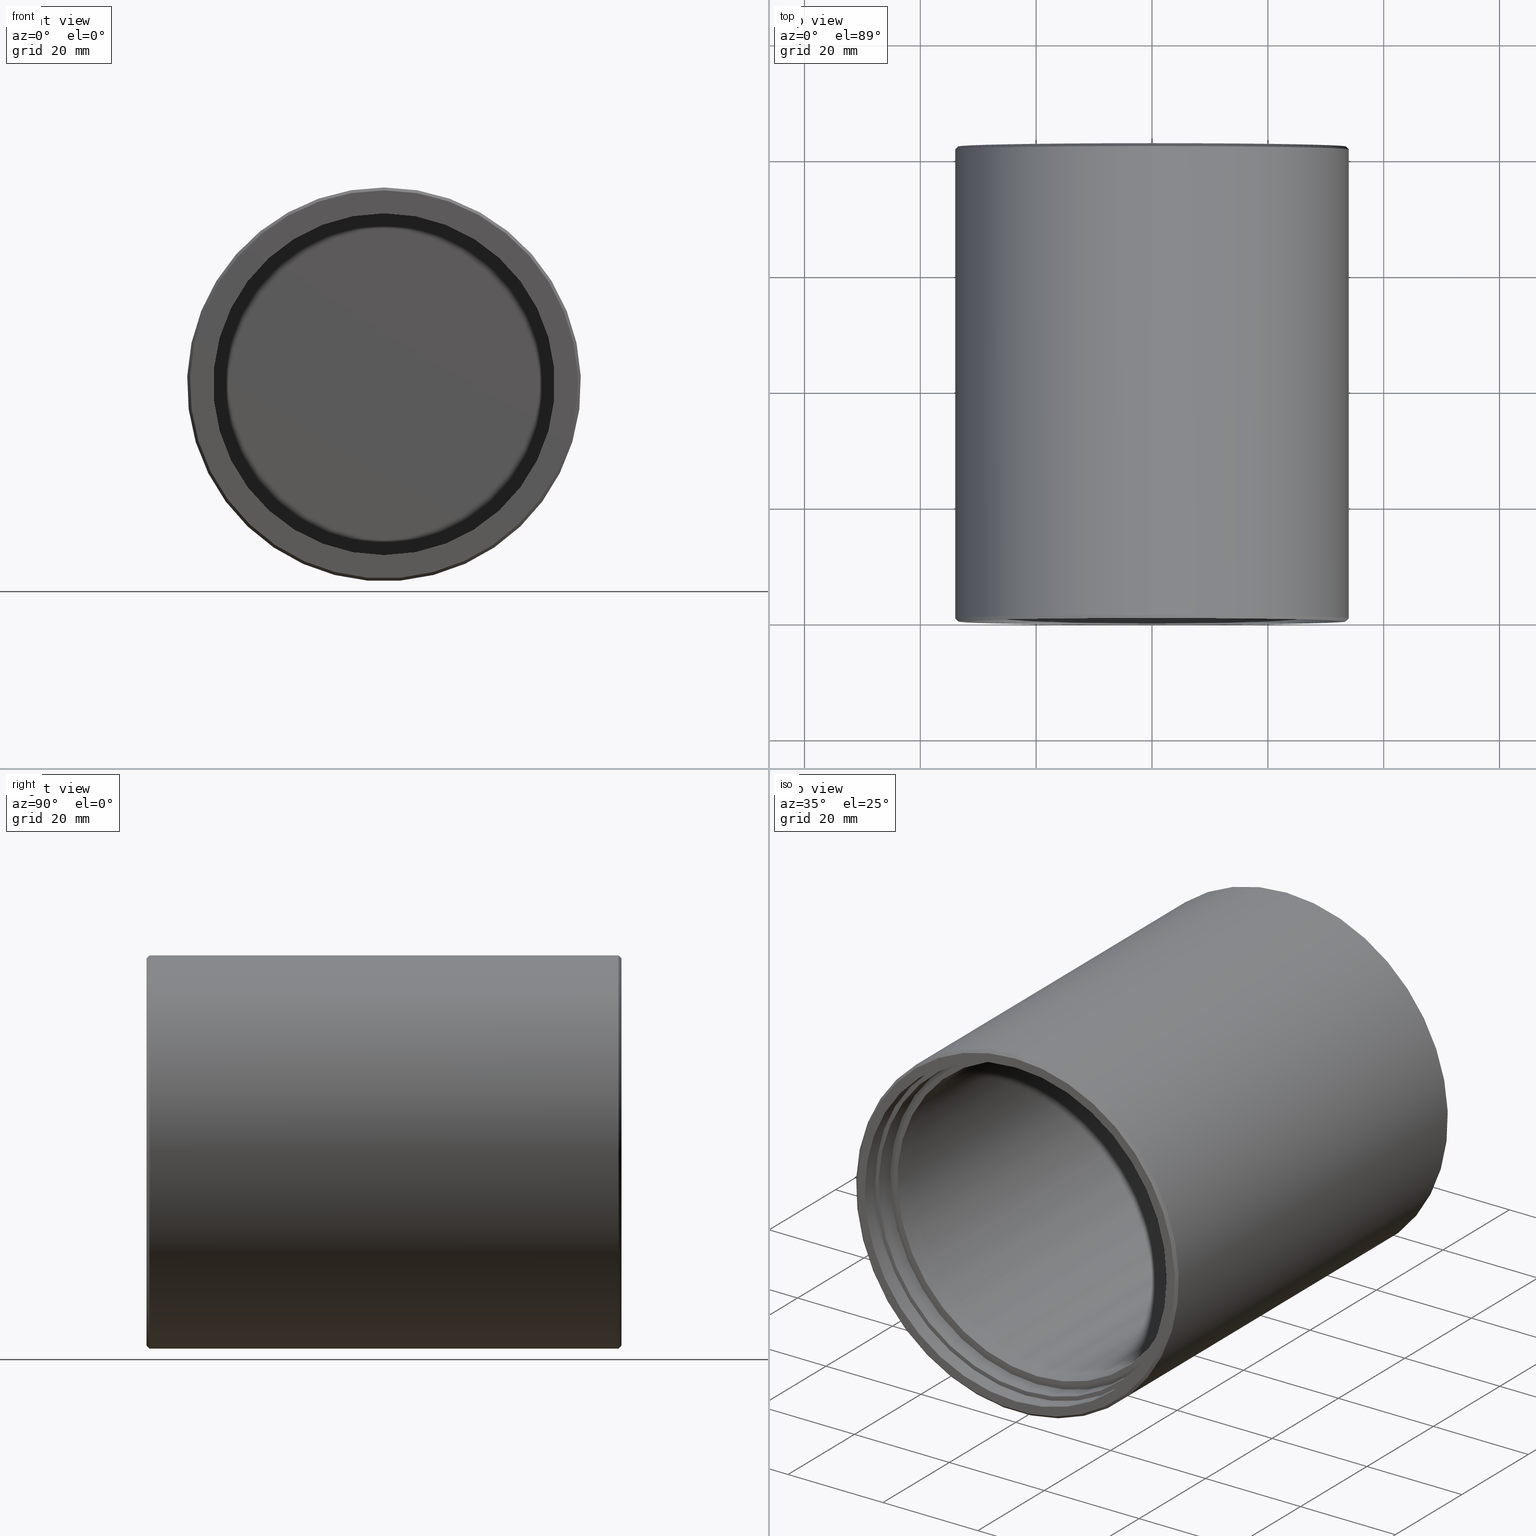
[diagram: canonical four-view strip — front | top / right | iso, engineering-drawing reading convention]
A machine part, canonical four-view strip (front | top / right | iso — engineering-drawing reading convention). The complete STEP part file that produces these views, byte-faithful:
ISO-10303-21;
HEADER;
FILE_DESCRIPTION (( 'STEP AP203' ),
    '1' );
FILE_NAME ('670040.STEP',
    '2025-05-23T04:17:09',
    ( 'Windows User' ),
    ( 'P R C' ),
    'SwSTEP 2.0',
    'SolidWorks 2020',
    '' );
FILE_SCHEMA (( 'CONFIG_CONTROL_DESIGN' ));
ENDSEC;

DATA;
#1 = DIRECTION ( 'NONE',  ( 0.000000000000000000, 0.000000000000000000, -1.000000000000000000 ) ) ;
#2 = AXIS2_PLACEMENT_3D ( 'NONE', #315, #267, #17 ) ;
#3 = ORIENTED_EDGE ( 'NONE', *, *, #191, .F. ) ;
#4 = ADVANCED_FACE ( 'NONE', ( #233, #262 ), #69, .T. ) ;
#5 = PERSON_AND_ORGANIZATION ( #6, #324 ) ;
#6 = PERSON ( 'δָ��', 'δָ��', 'δָ��', ('δָ��'), ('δָ��'), ('δָ��') ) ;
#7 = EDGE_LOOP ( 'NONE', ( #31 ) ) ;
#8 = CARTESIAN_POINT ( 'NONE',  ( 0.000000000000000000, 0.000000000000000000, 0.000000000000000000 ) ) ;
#9 = DATE_AND_TIME ( #311, #217 ) ;
#10 = ORIENTED_EDGE ( 'NONE', *, *, #321, .T. ) ;
#11 = APPLICATION_CONTEXT ( 'configuration controlled 3d designs of mechanical parts and assemblies' ) ;
#12 = PERSON_AND_ORGANIZATION ( #6, #324 ) ;
#13 = ORIENTED_EDGE ( 'NONE', *, *, #354, .T. ) ;
#14 = DIRECTION ( 'NONE',  ( 0.000000000000000000, 1.000000000000000000, 0.000000000000000000 ) ) ;
#15 = AXIS2_PLACEMENT_3D ( 'NONE', #296, #185, #43 ) ;
#16 = PLANE ( 'NONE',  #198 ) ;
#17 = DIRECTION ( 'NONE',  ( 0.000000000000000000, 0.000000000000000000, 1.000000000000000000 ) ) ;
#18 = FACE_OUTER_BOUND ( 'NONE', #178, .T. ) ;
#19 = AXIS2_PLACEMENT_3D ( 'NONE', #238, #22, #155 ) ;
#20 = APPROVAL_PERSON_ORGANIZATION ( #199, #136, #308 ) ;
#21 = DIRECTION ( 'NONE',  ( -0.000000000000000000, 1.000000000000000000, -0.000000000000000000 ) ) ;
#22 = DIRECTION ( 'NONE',  ( -0.000000000000000000, -1.000000000000000000, -0.000000000000000000 ) ) ;
#23 = DIRECTION ( 'NONE',  ( 0.000000000000000000, 0.000000000000000000, -1.000000000000000000 ) ) ;
#24 = CC_DESIGN_DATE_AND_TIME_ASSIGNMENT ( #288, #205, ( #299 ) ) ;
#25 = CARTESIAN_POINT ( 'NONE',  ( 0.000000000000000000, 6.479999999999999538, 0.000000000000000000 ) ) ;
#26 = AXIS2_PLACEMENT_3D ( 'NONE', #33, #65, #93 ) ;
#27 = CARTESIAN_POINT ( 'NONE',  ( 0.000000000000000000, 3.000000000000000000, -31.00000000000000000 ) ) ;
#28 = CARTESIAN_POINT ( 'NONE',  ( 0.000000000000000000, 6.479999999999999538, -29.50000000000000355 ) ) ;
#29 = APPROVAL_ROLE ( '' ) ;
#30 = CIRCLE ( 'NONE', #182, 33.99999999999999289 ) ;
#31 = ORIENTED_EDGE ( 'NONE', *, *, #334, .F. ) ;
#32 = FACE_OUTER_BOUND ( 'NONE', #159, .T. ) ;
#33 = CARTESIAN_POINT ( 'NONE',  ( 0.000000000000000000, 81.29881402696902626, 0.000000000000000000 ) ) ;
#34 = COORDINATED_UNIVERSAL_TIME_OFFSET ( 8, 0, .AHEAD. ) ;
#35 = CARTESIAN_POINT ( 'NONE',  ( 0.000000000000000000, 0.5000000000000143219, 0.000000000000000000 ) ) ;
#36 = DATE_AND_TIME ( #64, #249 ) ;
#37 = EDGE_LOOP ( 'NONE', ( #227 ) ) ;
#38 = FACE_OUTER_BOUND ( 'NONE', #139, .T. ) ;
#39 = EDGE_CURVE ( 'NONE', #78, #78, #186, .T. ) ;
#40 = FACE_OUTER_BOUND ( 'NONE', #166, .T. ) ;
#41 = LOCAL_TIME ( 12, 17, 9.000000000000000000, #34 ) ;
#42 = CC_DESIGN_APPROVAL ( #136, ( #207 ) ) ;
#43 = DIRECTION ( 'NONE',  ( 0.000000000000000000, -0.000000000000000000, -1.000000000000000000 ) ) ;
#44 = FACE_OUTER_BOUND ( 'NONE', #147, .T. ) ;
#45 = ADVANCED_FACE ( 'NONE', ( #38, #148 ), #53, .F. ) ;
#46 = FACE_OUTER_BOUND ( 'NONE', #306, .T. ) ;
#47 = AXIS2_PLACEMENT_3D ( 'NONE', #105, #323, #23 ) ;
#48 = DIRECTION ( 'NONE',  ( 0.000000000000000000, 0.000000000000000000, -1.000000000000000000 ) ) ;
#49 = CARTESIAN_POINT ( 'NONE',  ( 0.000000000000000000, 0.5000000000000143219, 33.99999999999999289 ) ) ;
#50 = ORIENTED_EDGE ( 'NONE', *, *, #111, .F. ) ;
#51 = ORIENTED_EDGE ( 'NONE', *, *, #165, .T. ) ;
#52 = VERTEX_POINT ( 'NONE', #81 ) ;
#53 = CONICAL_SURFACE ( 'NONE', #330, 29.86885863975199129, 1.286627573503845712 ) ;
#54 = DIRECTION ( 'NONE',  ( -0.000000000000000000, -1.000000000000000000, -0.000000000000000000 ) ) ;
#55 = EDGE_LOOP ( 'NONE', ( #50 ) ) ;
#56 = MANIFOLD_SOLID_BREP ( '͹̨-����2', #140 ) ;
#57 = PERSON_AND_ORGANIZATION ( #6, #324 ) ;
#58 = AXIS2_PLACEMENT_3D ( 'NONE', #351, #153, #266 ) ;
#59 = EDGE_LOOP ( 'NONE', ( #312 ) ) ;
#60 = SHAPE_DEFINITION_REPRESENTATION ( #132, #230 ) ;
#61 = DIRECTION ( 'NONE',  ( -0.000000000000000000, 1.000000000000000000, -0.000000000000000000 ) ) ;
#62 = COORDINATED_UNIVERSAL_TIME_OFFSET ( 8, 0, .AHEAD. ) ;
#63 = EDGE_LOOP ( 'NONE', ( #170 ) ) ;
#64 = CALENDAR_DATE ( 2025, 23, 5 ) ;
#65 = DIRECTION ( 'NONE',  ( 0.000000000000000000, -1.000000000000000000, 0.000000000000000000 ) ) ;
#66 = LOCAL_TIME ( 12, 17, 9.000000000000000000, #284 ) ;
#67 = APPROVAL_STATUS ( 'not_yet_approved' ) ;
#68 = EDGE_CURVE ( 'NONE', #276, #276, #30, .T. ) ;
#69 = PLANE ( 'NONE',  #345 ) ;
#70 = CARTESIAN_POINT ( 'NONE',  ( 0.000000000000000000, 81.50000000000000000, 0.000000000000000000 ) ) ;
#71 = DIRECTION ( 'NONE',  ( 0.000000000000000000, -0.000000000000000000, 1.000000000000000000 ) ) ;
#72 = AXIS2_PLACEMENT_3D ( 'NONE', #8, #231, #202 ) ;
#73 = CARTESIAN_POINT ( 'NONE',  ( 0.000000000000000000, 3.000000000000000000, 0.000000000000000000 ) ) ;
#74 = ADVANCED_FACE ( 'NONE', ( #85, #340 ), #115, .F. ) ;
#75 = DIRECTION ( 'NONE',  ( 0.000000000000000000, 1.000000000000000000, 0.000000000000000000 ) ) ;
#76 = DIRECTION ( 'NONE',  ( 0.000000000000000000, -1.000000000000000000, 0.000000000000000000 ) ) ;
#77 = CC_DESIGN_DATE_AND_TIME_ASSIGNMENT ( #86, #234, ( #207 ) ) ;
#78 = VERTEX_POINT ( 'NONE', #188 ) ;
#79 = VERTEX_POINT ( 'NONE', #27 ) ;
#80 = ORIENTED_EDGE ( 'NONE', *, *, #154, .T. ) ;
#81 = CARTESIAN_POINT ( 'NONE',  ( 0.000000000000000000, 0.000000000000000000, -31.80000000000000071 ) ) ;
#82 = EDGE_LOOP ( 'NONE', ( #88 ) ) ;
#83 =( GEOMETRIC_REPRESENTATION_CONTEXT ( 3 ) GLOBAL_UNCERTAINTY_ASSIGNED_CONTEXT ( ( #250 ) ) GLOBAL_UNIT_ASSIGNED_CONTEXT ( ( #160, #246, #278 ) ) REPRESENTATION_CONTEXT ( 'NONE', 'WORKASPACE' ) );
#84 = CARTESIAN_POINT ( 'NONE',  ( 0.000000000000000000, 81.00000000000000000, 30.00000000000000000 ) ) ;
#85 = FACE_OUTER_BOUND ( 'NONE', #55, .T. ) ;
#86 = DATE_AND_TIME ( #201, #66 ) ;
#87 = AXIS2_PLACEMENT_3D ( 'NONE', #25, #352, #1 ) ;
#88 = ORIENTED_EDGE ( 'NONE', *, *, #154, .F. ) ;
#89 = CARTESIAN_POINT ( 'NONE',  ( 0.000000000000000000, 84.00000000000000000, 0.000000000000000000 ) ) ;
#90 = PERSON_AND_ORGANIZATION_ROLE ( 'creator' ) ;
#91 = ORIENTED_EDGE ( 'NONE', *, *, #165, .F. ) ;
#92 = APPROVAL ( #224, 'δָ��' ) ;
#93 = DIRECTION ( 'NONE',  ( 0.000000000000000000, 0.000000000000000000, 1.000000000000000000 ) ) ;
#94 = AXIS2_PLACEMENT_3D ( 'NONE', #73, #212, #240 ) ;
#95 = DIRECTION ( 'NONE',  ( 0.000000000000000000, -1.000000000000000000, 0.000000000000000000 ) ) ;
#96 = DIRECTION ( 'NONE',  ( 0.000000000000000000, 0.000000000000000000, 1.000000000000000000 ) ) ;
#97 = DIRECTION ( 'NONE',  ( 0.000000000000000000, -1.000000000000000000, 0.000000000000000000 ) ) ;
#98 = AXIS2_PLACEMENT_3D ( 'NONE', #179, #95, #48 ) ;
#99 = FACE_BOUND ( 'NONE', #112, .T. ) ;
#100 = DIRECTION ( 'NONE',  ( 0.000000000000000000, -1.000000000000000000, 0.000000000000000000 ) ) ;
#101 = ADVANCED_FACE ( 'NONE', ( #285, #32 ), #142, .F. ) ;
#102 = CARTESIAN_POINT ( 'NONE',  ( 0.000000000000000000, 78.00000000000000000, 0.000000000000000000 ) ) ;
#103 = AXIS2_PLACEMENT_3D ( 'NONE', #70, #239, #152 ) ;
#104 = VERTEX_POINT ( 'NONE', #84 ) ;
#105 = CARTESIAN_POINT ( 'NONE',  ( 0.000000000000000000, 0.000000000000000000, 0.000000000000000000 ) ) ;
#106 = EDGE_LOOP ( 'NONE', ( #3 ) ) ;
#107 = EDGE_CURVE ( 'NONE', #158, #158, #126, .T. ) ;
#108 = CIRCLE ( 'NONE', #47, 31.80000000000000071 ) ;
#109 = VERTEX_POINT ( 'NONE', #196 ) ;
#110 = PERSON_AND_ORGANIZATION_ROLE ( 'design_supplier' ) ;
#111 = EDGE_CURVE ( 'NONE', #109, #109, #213, .T. ) ;
#112 = EDGE_LOOP ( 'NONE', ( #200 ) ) ;
#113 = PERSON_AND_ORGANIZATION_ROLE ( 'design_owner' ) ;
#114 = CIRCLE ( 'NONE', #258, 29.50000000000000355 ) ;
#115 = CYLINDRICAL_SURFACE ( 'NONE', #271, 31.80000000000000071 ) ;
#116 = SECURITY_CLASSIFICATION_LEVEL ( 'unclassified' ) ;
#117 = EDGE_LOOP ( 'NONE', ( #264 ) ) ;
#118 = DIRECTION ( 'NONE',  ( 0.000000000000000000, 0.000000000000000000, 1.000000000000000000 ) ) ;
#119 = DIRECTION ( 'NONE',  ( 0.000000000000000000, -0.000000000000000000, 1.000000000000000000 ) ) ;
#120 = CARTESIAN_POINT ( 'NONE',  ( 0.000000000000000000, 81.26051114682492482, 0.000000000000000000 ) ) ;
#121 = AXIS2_PLACEMENT_3D ( 'NONE', #301, #54, #303 ) ;
#122 = PLANE ( 'NONE',  #295 ) ;
#123 = ADVANCED_FACE ( 'NONE', ( #322 ), #16, .T. ) ;
#124 = FACE_OUTER_BOUND ( 'NONE', #208, .T. ) ;
#125 = FACE_OUTER_BOUND ( 'NONE', #59, .T. ) ;
#126 = CIRCLE ( 'NONE', #72, 33.49999999999997868 ) ;
#127 = AXIS2_PLACEMENT_3D ( 'NONE', #141, #118, #337 ) ;
#128 = FACE_BOUND ( 'NONE', #275, .T. ) ;
#129 = ADVANCED_FACE ( 'NONE', ( #40 ), #122, .F. ) ;
#130 = VERTEX_POINT ( 'NONE', #220 ) ;
#131 = DESIGN_CONTEXT ( 'detailed design', #216, 'design' ) ;
#132 = PRODUCT_DEFINITION_SHAPE ( 'NONE', 'NONE',  #299 ) ;
#133 = DIRECTION ( 'NONE',  ( 0.000000000000000000, 0.000000000000000000, -1.000000000000000000 ) ) ;
#134 = CIRCLE ( 'NONE', #222, 31.00000000000000000 ) ;
#135 = DIRECTION ( 'NONE',  ( 0.000000000000000000, 0.000000000000000000, -1.000000000000000000 ) ) ;
#136 = APPROVAL ( #67, 'δָ��' ) ;
#137 = VERTEX_POINT ( 'NONE', #28 ) ;
#138 = DIRECTION ( 'NONE',  ( 0.000000000000000000, -1.000000000000000000, 0.000000000000000000 ) ) ;
#139 = EDGE_LOOP ( 'NONE', ( #342 ) ) ;
#140 = CLOSED_SHELL ( 'NONE', ( #101, #263, #4, #286, #243, #273, #74, #268, #328, #173, #291, #45, #129, #123 ) ) ;
#141 = CARTESIAN_POINT ( 'NONE',  ( 0.000000000000000000, 0.000000000000000000, 0.000000000000000000 ) ) ;
#142 = CYLINDRICAL_SURFACE ( 'NONE', #156, 30.00000000000000000 ) ;
#143 = DIRECTION ( 'NONE',  ( 0.000000000000000000, 0.000000000000000000, 1.000000000000000000 ) ) ;
#144 = CONICAL_SURFACE ( 'NONE', #150, 33.99999999999999289, 0.7853981633974482790 ) ;
#145 = ORIENTED_EDGE ( 'NONE', *, *, #354, .F. ) ;
#146 = DATE_AND_TIME ( #174, #218 ) ;
#147 = EDGE_LOOP ( 'NONE', ( #327 ) ) ;
#148 = FACE_BOUND ( 'NONE', #117, .T. ) ;
#149 = CARTESIAN_POINT ( 'NONE',  ( 0.000000000000000000, 82.00000000000000000, 0.000000000000000000 ) ) ;
#150 = AXIS2_PLACEMENT_3D ( 'NONE', #348, #21, #96 ) ;
#151 = PRODUCT_RELATED_PRODUCT_CATEGORY ( 'detail', '', ( #241 ) ) ;
#152 = DIRECTION ( 'NONE',  ( 0.000000000000000000, 0.000000000000000000, 1.000000000000000000 ) ) ;
#153 = DIRECTION ( 'NONE',  ( 0.000000000000000000, 1.000000000000000000, 0.000000000000000000 ) ) ;
#154 = EDGE_CURVE ( 'NONE', #137, #137, #114, .T. ) ;
#155 = DIRECTION ( 'NONE',  ( 0.000000000000000000, 0.000000000000000000, -1.000000000000000000 ) ) ;
#156 = AXIS2_PLACEMENT_3D ( 'NONE', #89, #338, #257 ) ;
#157 = PLANE ( 'NONE',  #15 ) ;
#158 = VERTEX_POINT ( 'NONE', #247 ) ;
#159 = EDGE_LOOP ( 'NONE', ( #309 ) ) ;
#160 =( LENGTH_UNIT ( ) NAMED_UNIT ( * ) SI_UNIT ( .MILLI., .METRE. ) );
#161 = CIRCLE ( 'NONE', #332, 33.49999999999997158 ) ;
#162 = CARTESIAN_POINT ( 'NONE',  ( 0.000000000000000000, 82.00000000000000000, 0.000000000000000000 ) ) ;
#163 = VERTEX_POINT ( 'NONE', #223 ) ;
#164 = APPLICATION_PROTOCOL_DEFINITION ( 'international standard', 'config_control_design', 1994, #11 ) ;
#165 = EDGE_CURVE ( 'NONE', #253, #253, #228, .T. ) ;
#166 = EDGE_LOOP ( 'NONE', ( #190 ) ) ;
#167 = APPROVAL_PERSON_ORGANIZATION ( #335, #92, #29 ) ;
#168 = CALENDAR_DATE ( 2025, 23, 5 ) ;
#169 = DIRECTION ( 'NONE',  ( -0.000000000000000000, -1.000000000000000000, -0.000000000000000000 ) ) ;
#170 = ORIENTED_EDGE ( 'NONE', *, *, #317, .F. ) ;
#171 = APPROVAL_DATE_TIME ( #9, #92 ) ;
#172 = DIRECTION ( 'NONE',  ( -0.000000000000000000, 1.000000000000000000, -0.000000000000000000 ) ) ;
#173 = ADVANCED_FACE ( 'NONE', ( #214, #350 ), #157, .T. ) ;
#174 = CALENDAR_DATE ( 2025, 23, 5 ) ;
#175 = APPROVAL_PERSON_ORGANIZATION ( #229, #209, #259 ) ;
#176 = EDGE_LOOP ( 'NONE', ( #252 ) ) ;
#177 = COORDINATED_UNIVERSAL_TIME_OFFSET ( 8, 0, .AHEAD. ) ;
#178 = EDGE_LOOP ( 'NONE', ( #80 ) ) ;
#179 = CARTESIAN_POINT ( 'NONE',  ( 0.000000000000000000, 78.00000000000000000, 0.000000000000000000 ) ) ;
#180 = CC_DESIGN_PERSON_AND_ORGANIZATION_ASSIGNMENT ( #57, #113, ( #241 ) ) ;
#181 = DIRECTION ( 'NONE',  ( 0.000000000000000000, 0.000000000000000000, -1.000000000000000000 ) ) ;
#182 = AXIS2_PLACEMENT_3D ( 'NONE', #35, #172, #143 ) ;
#183 = DIRECTION ( 'NONE',  ( 0.000000000000000000, -0.000000000000000000, 1.000000000000000000 ) ) ;
#184 = DIRECTION ( 'NONE',  ( 0.000000000000000000, 1.000000000000000000, 0.000000000000000000 ) ) ;
#185 = DIRECTION ( 'NONE',  ( 0.000000000000000000, -1.000000000000000000, 0.000000000000000000 ) ) ;
#186 = CIRCLE ( 'NONE', #26, 30.00000000000000000 ) ;
#187 = CC_DESIGN_APPROVAL ( #209, ( #325 ) ) ;
#188 = CARTESIAN_POINT ( 'NONE',  ( 0.000000000000000000, 81.29881402696902626, 30.00000000000000000 ) ) ;
#189 = VERTEX_POINT ( 'NONE', #304 ) ;
#190 = ORIENTED_EDGE ( 'NONE', *, *, #195, .T. ) ;
#191 = EDGE_CURVE ( 'NONE', #163, #163, #161, .T. ) ;
#192 = DIRECTION ( 'NONE',  ( -0.000000000000000000, -1.000000000000000000, -0.000000000000000000 ) ) ;
#193 = ORIENTED_EDGE ( 'NONE', *, *, #191, .T. ) ;
#194 = DIRECTION ( 'NONE',  ( -0.000000000000000000, 1.000000000000000000, -0.000000000000000000 ) ) ;
#195 = EDGE_CURVE ( 'NONE', #333, #333, #307, .T. ) ;
#196 = CARTESIAN_POINT ( 'NONE',  ( 0.000000000000000000, 3.000000000000000000, -31.80000000000000071 ) ) ;
#197 = CARTESIAN_POINT ( 'NONE',  ( 0.000000000000000000, 3.000000000000000000, 0.000000000000000000 ) ) ;
#198 = AXIS2_PLACEMENT_3D ( 'NONE', #320, #184, #183 ) ;
#199 = PERSON_AND_ORGANIZATION ( #6, #324 ) ;
#200 = ORIENTED_EDGE ( 'NONE', *, *, #107, .F. ) ;
#201 = CALENDAR_DATE ( 2025, 23, 5 ) ;
#202 = DIRECTION ( 'NONE',  ( 0.000000000000000000, 0.000000000000000000, 1.000000000000000000 ) ) ;
#203 = CC_DESIGN_PERSON_AND_ORGANIZATION_ASSIGNMENT ( #12, #232, ( #207 ) ) ;
#204 = ORIENTED_EDGE ( 'NONE', *, *, #68, .F. ) ;
#205 = DATE_TIME_ROLE ( 'creation_date' ) ;
#206 = AXIS2_PLACEMENT_3D ( 'NONE', #102, #192, #133 ) ;
#207 = SECURITY_CLASSIFICATION ( '', '', #116 ) ;
#208 = EDGE_LOOP ( 'NONE', ( #51 ) ) ;
#209 = APPROVAL ( #290, 'δָ��' ) ;
#210 = PLANE ( 'NONE',  #94 ) ;
#211 = DIRECTION ( 'NONE',  ( 0.000000000000000000, 1.000000000000000000, 0.000000000000000000 ) ) ;
#212 = DIRECTION ( 'NONE',  ( 0.000000000000000000, -1.000000000000000000, 0.000000000000000000 ) ) ;
#213 = CIRCLE ( 'NONE', #244, 31.80000000000000071 ) ;
#214 = FACE_BOUND ( 'NONE', #82, .T. ) ;
#215 = DIRECTION ( 'NONE',  ( 0.000000000000000000, 0.000000000000000000, -1.000000000000000000 ) ) ;
#216 = APPLICATION_CONTEXT ( 'configuration controlled 3d designs of mechanical parts and assemblies' ) ;
#217 = LOCAL_TIME ( 12, 17, 9.000000000000000000, #177 ) ;
#218 = LOCAL_TIME ( 12, 17, 9.000000000000000000, #62 ) ;
#219 = CC_DESIGN_PERSON_AND_ORGANIZATION_ASSIGNMENT ( #339, #90, ( #325 ) ) ;
#220 = CARTESIAN_POINT ( 'NONE',  ( 0.000000000000000000, 6.479999999999999538, -31.00000000000000000 ) ) ;
#221 = EDGE_CURVE ( 'NONE', #104, #104, #282, .T. ) ;
#222 = AXIS2_PLACEMENT_3D ( 'NONE', #281, #138, #135 ) ;
#223 = CARTESIAN_POINT ( 'NONE',  ( 0.000000000000000000, 82.00000000000000000, 33.49999999999997158 ) ) ;
#224 = APPROVAL_STATUS ( 'not_yet_approved' ) ;
#225 = EDGE_LOOP ( 'NONE', ( #193 ) ) ;
#226 = COORDINATED_UNIVERSAL_TIME_OFFSET ( 8, 0, .AHEAD. ) ;
#227 = ORIENTED_EDGE ( 'NONE', *, *, #68, .T. ) ;
#228 = CIRCLE ( 'NONE', #103, 33.99999999999999289 ) ;
#229 = PERSON_AND_ORGANIZATION ( #6, #324 ) ;
#230 = ADVANCED_BREP_SHAPE_REPRESENTATION ( '670040', ( #56, #127 ), #83 ) ;
#231 = DIRECTION ( 'NONE',  ( -0.000000000000000000, -1.000000000000000000, -0.000000000000000000 ) ) ;
#232 = PERSON_AND_ORGANIZATION_ROLE ( 'classification_officer' ) ;
#233 = FACE_BOUND ( 'NONE', #63, .T. ) ;
#234 = DATE_TIME_ROLE ( 'classification_date' ) ;
#235 = EDGE_LOOP ( 'NONE', ( #331 ) ) ;
#236 = CC_DESIGN_PERSON_AND_ORGANIZATION_ASSIGNMENT ( #341, #255, ( #299 ) ) ;
#237 = AXIS2_PLACEMENT_3D ( 'NONE', #149, #97, #297 ) ;
#238 = CARTESIAN_POINT ( 'NONE',  ( 0.000000000000000000, 82.00000000000000000, 0.000000000000000000 ) ) ;
#239 = DIRECTION ( 'NONE',  ( 0.000000000000000000, -1.000000000000000000, 0.000000000000000000 ) ) ;
#240 = DIRECTION ( 'NONE',  ( 0.000000000000000000, -0.000000000000000000, -1.000000000000000000 ) ) ;
#241 = PRODUCT ( '670040', '670040', '', ( #261 ) ) ;
#242 = CYLINDRICAL_SURFACE ( 'NONE', #206, 29.50000000000000355 ) ;
#243 = ADVANCED_FACE ( 'NONE', ( #99, #46 ), #144, .T. ) ;
#244 = AXIS2_PLACEMENT_3D ( 'NONE', #310, #100, #215 ) ;
#245 = PLANE ( 'NONE',  #58 ) ;
#246 =( NAMED_UNIT ( * ) PLANE_ANGLE_UNIT ( ) SI_UNIT ( $, .RADIAN. ) );
#247 = CARTESIAN_POINT ( 'NONE',  ( 0.000000000000000000, 0.000000000000000000, 33.49999999999997868 ) ) ;
#248 = CIRCLE ( 'NONE', #277, 32.40071978775878137 ) ;
#249 = LOCAL_TIME ( 12, 17, 9.000000000000000000, #226 ) ;
#250 = UNCERTAINTY_MEASURE_WITH_UNIT (LENGTH_MEASURE( 1.000000000000000082E-05 ), #160, 'distance_accuracy_value', 'NONE');
#251 = DIRECTION ( 'NONE',  ( 0.000000000000000000, 0.000000000000000000, 1.000000000000000000 ) ) ;
#252 = ORIENTED_EDGE ( 'NONE', *, *, #221, .T. ) ;
#253 = VERTEX_POINT ( 'NONE', #279 ) ;
#254 = ORIENTED_EDGE ( 'NONE', *, *, #221, .F. ) ;
#255 = PERSON_AND_ORGANIZATION_ROLE ( 'creator' ) ;
#256 = DIRECTION ( 'NONE',  ( 0.000000000000000000, 0.000000000000000000, -1.000000000000000000 ) ) ;
#257 = DIRECTION ( 'NONE',  ( 0.000000000000000000, 0.000000000000000000, -1.000000000000000000 ) ) ;
#258 = AXIS2_PLACEMENT_3D ( 'NONE', #346, #76, #181 ) ;
#259 = APPROVAL_ROLE ( '' ) ;
#260 = EDGE_LOOP ( 'NONE', ( #292 ) ) ;
#261 = MECHANICAL_CONTEXT ( 'NONE', #11, 'mechanical' ) ;
#262 = FACE_OUTER_BOUND ( 'NONE', #225, .T. ) ;
#263 = ADVANCED_FACE ( 'NONE', ( #269, #124 ), #294, .T. ) ;
#264 = ORIENTED_EDGE ( 'NONE', *, *, #39, .T. ) ;
#265 = CC_DESIGN_APPROVAL ( #92, ( #299 ) ) ;
#266 = DIRECTION ( 'NONE',  ( 0.000000000000000000, -0.000000000000000000, 1.000000000000000000 ) ) ;
#267 = DIRECTION ( 'NONE',  ( -0.000000000000000000, -1.000000000000000000, -0.000000000000000000 ) ) ;
#268 = ADVANCED_FACE ( 'NONE', ( #128, #272 ), #210, .T. ) ;
#269 = FACE_OUTER_BOUND ( 'NONE', #37, .T. ) ;
#270 = FACE_OUTER_BOUND ( 'NONE', #293, .T. ) ;
#271 = AXIS2_PLACEMENT_3D ( 'NONE', #197, #169, #256 ) ;
#272 = FACE_OUTER_BOUND ( 'NONE', #314, .T. ) ;
#273 = ADVANCED_FACE ( 'NONE', ( #270, #349 ), #353, .T. ) ;
#274 = FACE_OUTER_BOUND ( 'NONE', #235, .T. ) ;
#275 = EDGE_LOOP ( 'NONE', ( #145 ) ) ;
#276 = VERTEX_POINT ( 'NONE', #49 ) ;
#277 = AXIS2_PLACEMENT_3D ( 'NONE', #162, #194, #251 ) ;
#278 =( NAMED_UNIT ( * ) SI_UNIT ( $, .STERADIAN. ) SOLID_ANGLE_UNIT ( ) );
#279 = CARTESIAN_POINT ( 'NONE',  ( 0.000000000000000000, 81.50000000000000000, 33.99999999999999289 ) ) ;
#280 = EDGE_LOOP ( 'NONE', ( #13 ) ) ;
#281 = CARTESIAN_POINT ( 'NONE',  ( 0.000000000000000000, 3.000000000000000000, 0.000000000000000000 ) ) ;
#282 = CIRCLE ( 'NONE', #2, 30.00000000000000000 ) ;
#283 = CC_DESIGN_SECURITY_CLASSIFICATION ( #207, ( #325 ) ) ;
#284 = COORDINATED_UNIVERSAL_TIME_OFFSET ( 8, 0, .AHEAD. ) ;
#285 = FACE_OUTER_BOUND ( 'NONE', #176, .T. ) ;
#286 = ADVANCED_FACE ( 'NONE', ( #319, #44 ), #245, .F. ) ;
#287 = CARTESIAN_POINT ( 'NONE',  ( 0.000000000000000000, 82.00000000000000000, 0.000000000000000000 ) ) ;
#288 = DATE_AND_TIME ( #168, #41 ) ;
#289 = EDGE_LOOP ( 'NONE', ( #254 ) ) ;
#290 = APPROVAL_STATUS ( 'not_yet_approved' ) ;
#291 = ADVANCED_FACE ( 'NONE', ( #18, #125 ), #242, .F. ) ;
#292 = ORIENTED_EDGE ( 'NONE', *, *, #334, .T. ) ;
#293 = EDGE_LOOP ( 'NONE', ( #91 ) ) ;
#294 = CYLINDRICAL_SURFACE ( 'NONE', #19, 33.99999999999999289 ) ;
#295 = AXIS2_PLACEMENT_3D ( 'NONE', #316, #211, #71 ) ;
#296 = CARTESIAN_POINT ( 'NONE',  ( 0.000000000000000000, 6.479999999999999538, 0.000000000000000000 ) ) ;
#297 = DIRECTION ( 'NONE',  ( 0.000000000000000000, 0.000000000000000000, -1.000000000000000000 ) ) ;
#298 = CARTESIAN_POINT ( 'NONE',  ( 0.000000000000000000, 82.00000000000000000, 0.000000000000000000 ) ) ;
#299 = PRODUCT_DEFINITION ( 'δ֪', '', #325, #131 ) ;
#300 = DIRECTION ( 'NONE',  ( 0.000000000000000000, 0.000000000000000000, 1.000000000000000000 ) ) ;
#301 = CARTESIAN_POINT ( 'NONE',  ( 0.000000000000000000, 6.479999999999999538, 0.000000000000000000 ) ) ;
#302 = FACE_OUTER_BOUND ( 'NONE', #280, .T. ) ;
#303 = DIRECTION ( 'NONE',  ( 0.000000000000000000, 0.000000000000000000, -1.000000000000000000 ) ) ;
#304 = CARTESIAN_POINT ( 'NONE',  ( 0.000000000000000000, 82.00000000000000000, 32.40071978775878137 ) ) ;
#305 = APPROVAL_DATE_TIME ( #36, #209 ) ;
#306 = EDGE_LOOP ( 'NONE', ( #204 ) ) ;
#307 = CIRCLE ( 'NONE', #98, 29.50000000000000355 ) ;
#308 = APPROVAL_ROLE ( '' ) ;
#309 = ORIENTED_EDGE ( 'NONE', *, *, #39, .F. ) ;
#310 = CARTESIAN_POINT ( 'NONE',  ( 0.000000000000000000, 3.000000000000000000, 0.000000000000000000 ) ) ;
#311 = CALENDAR_DATE ( 2025, 23, 5 ) ;
#312 = ORIENTED_EDGE ( 'NONE', *, *, #195, .F. ) ;
#313 = APPLICATION_PROTOCOL_DEFINITION ( 'international standard', 'config_control_design', 1994, #216 ) ;
#314 = EDGE_LOOP ( 'NONE', ( #344 ) ) ;
#315 = CARTESIAN_POINT ( 'NONE',  ( 0.000000000000000000, 81.00000000000000000, 0.000000000000000000 ) ) ;
#316 = CARTESIAN_POINT ( 'NONE',  ( 0.000000000000000000, 78.00000000000000000, 0.000000000000000000 ) ) ;
#317 = EDGE_CURVE ( 'NONE', #189, #189, #248, .T. ) ;
#318 = CIRCLE ( 'NONE', #87, 31.00000000000000000 ) ;
#319 = FACE_BOUND ( 'NONE', #7, .T. ) ;
#320 = CARTESIAN_POINT ( 'NONE',  ( 0.000000000000000000, 81.00000000000000000, 0.000000000000000000 ) ) ;
#321 = EDGE_CURVE ( 'NONE', #130, #130, #318, .T. ) ;
#322 = FACE_OUTER_BOUND ( 'NONE', #289, .T. ) ;
#323 = DIRECTION ( 'NONE',  ( 0.000000000000000000, -1.000000000000000000, 0.000000000000000000 ) ) ;
#324 = ORGANIZATION ( 'δָ��', 'δָ��', '' ) ;
#325 = PRODUCT_DEFINITION_FORMATION_WITH_SPECIFIED_SOURCE ( '�κ�', '', #241, .NOT_KNOWN. ) ;
#326 = CARTESIAN_POINT ( 'NONE',  ( 0.000000000000000000, 78.00000000000000000, -29.50000000000000355 ) ) ;
#327 = ORIENTED_EDGE ( 'NONE', *, *, #107, .T. ) ;
#328 = ADVANCED_FACE ( 'NONE', ( #274, #302 ), #329, .F. ) ;
#329 = CYLINDRICAL_SURFACE ( 'NONE', #121, 31.00000000000000000 ) ;
#330 = AXIS2_PLACEMENT_3D ( 'NONE', #120, #61, #336 ) ;
#331 = ORIENTED_EDGE ( 'NONE', *, *, #321, .F. ) ;
#332 = AXIS2_PLACEMENT_3D ( 'NONE', #298, #75, #300 ) ;
#333 = VERTEX_POINT ( 'NONE', #326 ) ;
#334 = EDGE_CURVE ( 'NONE', #52, #52, #108, .T. ) ;
#335 = PERSON_AND_ORGANIZATION ( #6, #324 ) ;
#336 = DIRECTION ( 'NONE',  ( 0.000000000000000000, 0.000000000000000000, 1.000000000000000000 ) ) ;
#337 = DIRECTION ( 'NONE',  ( 1.000000000000000000, 0.000000000000000000, 0.000000000000000000 ) ) ;
#338 = DIRECTION ( 'NONE',  ( -0.000000000000000000, -1.000000000000000000, -0.000000000000000000 ) ) ;
#339 = PERSON_AND_ORGANIZATION ( #6, #324 ) ;
#340 = FACE_OUTER_BOUND ( 'NONE', #260, .T. ) ;
#341 = PERSON_AND_ORGANIZATION ( #6, #324 ) ;
#342 = ORIENTED_EDGE ( 'NONE', *, *, #317, .T. ) ;
#343 = APPROVAL_DATE_TIME ( #146, #136 ) ;
#344 = ORIENTED_EDGE ( 'NONE', *, *, #111, .T. ) ;
#345 = AXIS2_PLACEMENT_3D ( 'NONE', #287, #14, #119 ) ;
#346 = CARTESIAN_POINT ( 'NONE',  ( 0.000000000000000000, 6.479999999999999538, 0.000000000000000000 ) ) ;
#347 = CC_DESIGN_PERSON_AND_ORGANIZATION_ASSIGNMENT ( #5, #110, ( #325 ) ) ;
#348 = CARTESIAN_POINT ( 'NONE',  ( 0.000000000000000000, 0.5000000000000143219, 0.000000000000000000 ) ) ;
#349 = FACE_BOUND ( 'NONE', #106, .T. ) ;
#350 = FACE_OUTER_BOUND ( 'NONE', #355, .T. ) ;
#351 = CARTESIAN_POINT ( 'NONE',  ( 0.000000000000000000, 0.000000000000000000, 0.000000000000000000 ) ) ;
#352 = DIRECTION ( 'NONE',  ( 0.000000000000000000, -1.000000000000000000, 0.000000000000000000 ) ) ;
#353 = CONICAL_SURFACE ( 'NONE', #237, 33.49999999999997158, 0.7853981633974691512 ) ;
#354 = EDGE_CURVE ( 'NONE', #79, #79, #134, .T. ) ;
#355 = EDGE_LOOP ( 'NONE', ( #10 ) ) ;
ENDSEC;
END-ISO-10303-21;
